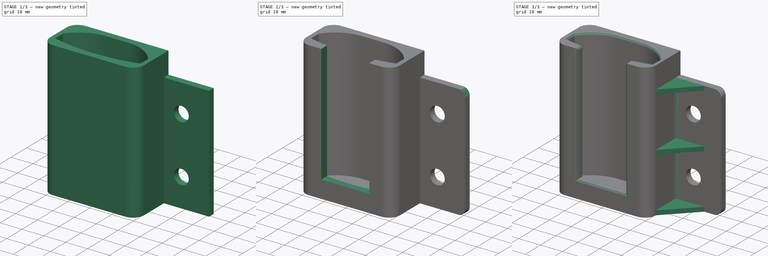
[diagram: build sequence overview — one tinted view per stage of 3, left to right]
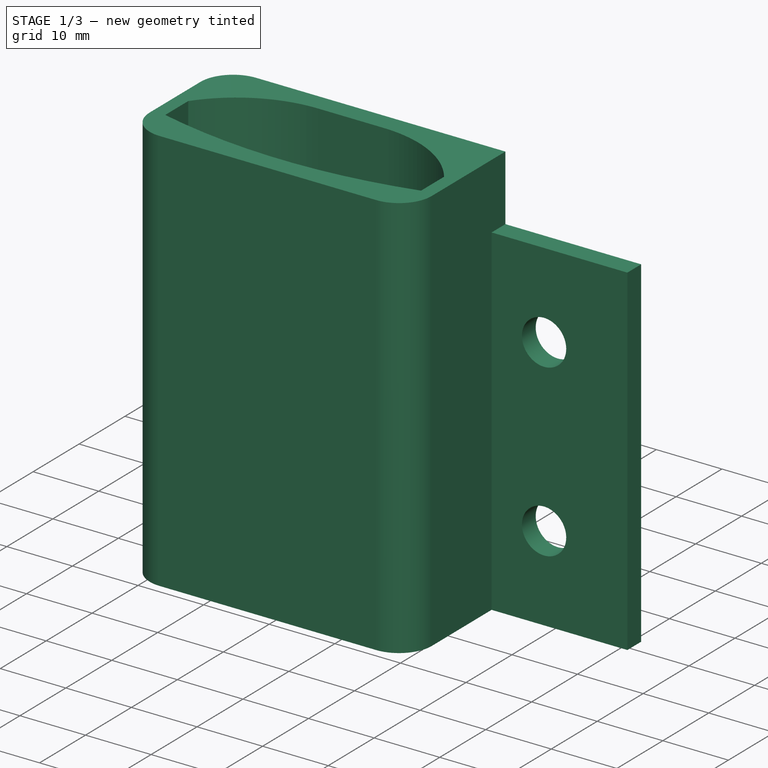
[diagram: stage 1 of 3 — iso view after this stage's code; geometry added in this stage tinted green]
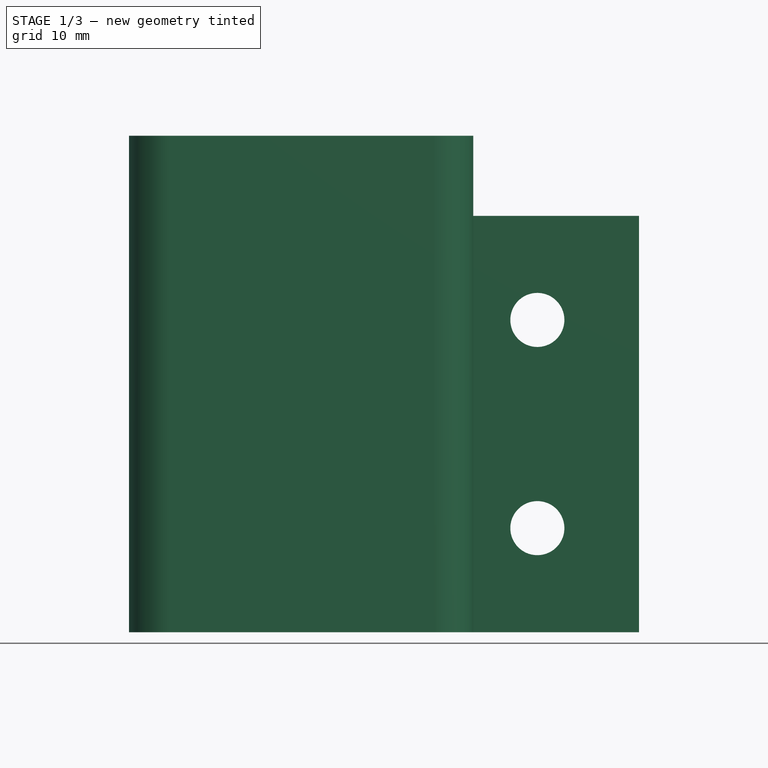
[diagram: stage 1 of 3 — front view after this stage's code; geometry added in this stage tinted green]
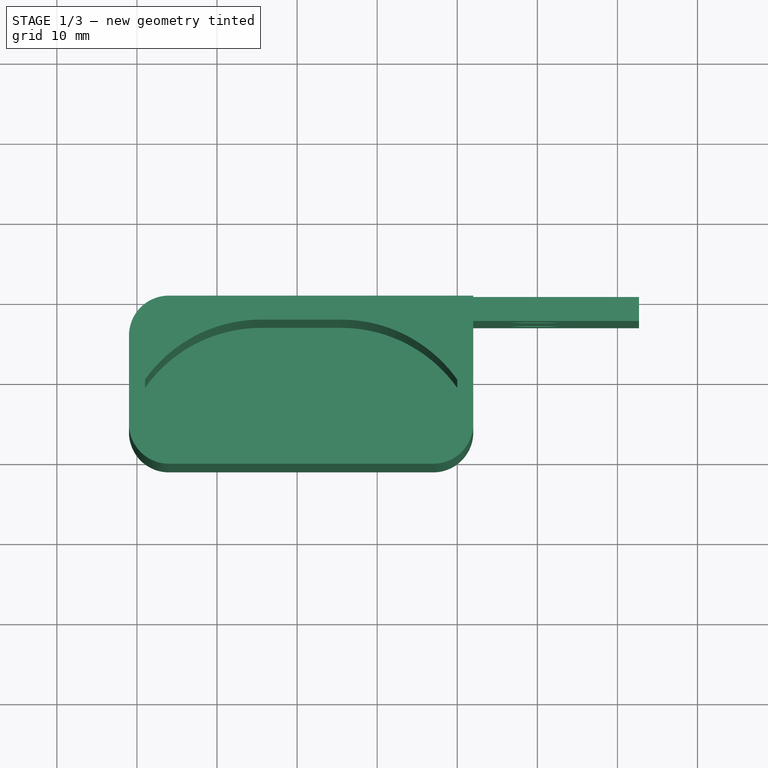
[diagram: stage 1 of 3 — top view after this stage's code; geometry added in this stage tinted green]
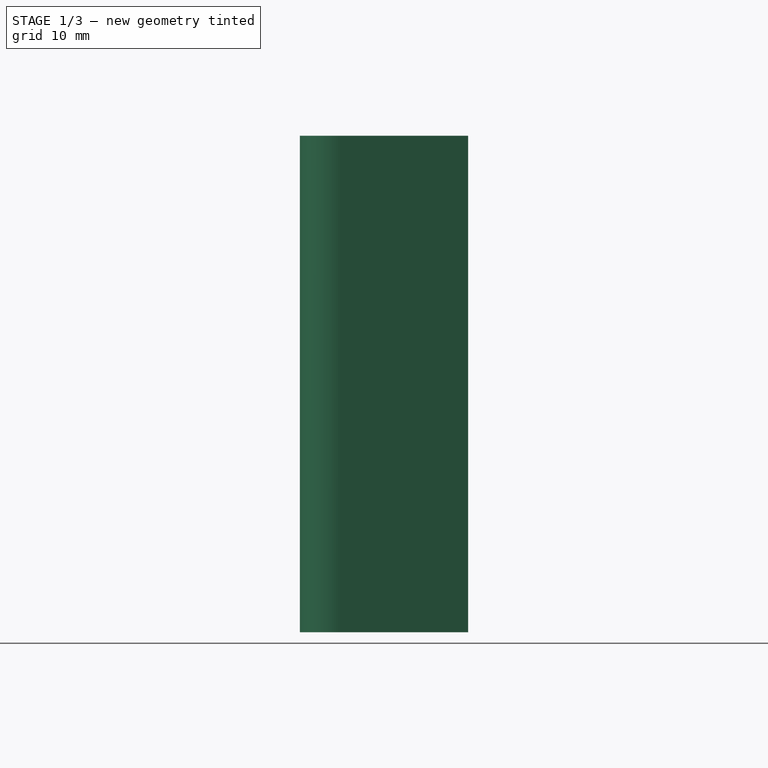
[diagram: stage 1 of 3 — right view after this stage's code; geometry added in this stage tinted green]
FCSTD DOCUMENT  (FreeCAD 0.22R38553 (Git))
Label: led_controller_holder
License: All rights reserved
LicenseURL: http://en.wikipedia.org/wiki/All_rights_reserved
objects: Sketcher::SketchObject×5, PartDesign::Pad×3, PartDesign::Pocket×2, PartDesign::Fillet×2, PartDesign::LinearPattern×1, PartDesign::Body×1
note: 34 computed .brp shape members not serialized (recipe doc carries the construction recipe); baked Part::Feature solids carry a one-line shape summary decoded from their .brp

FEATURE [Sketcher::SketchObject] Sketch
  ArcFitTolerance = 1e-06
  AttachmentSupport = -> [XZ_Plane]
  FullyConstrained = true
  MakeInternals = false
  MapMode = 5
  Placement = pos=(0,0,0) rot=(1,0,0;1.5708rad)
  sketch-geometry (8):
    g0: LineSegment StartX=-12.7 StartY=0 StartZ=0 EndX=12.7 EndY=0 EndZ=0
    g1: LineSegment StartX=12.7 StartY=0 StartZ=0 EndX=12.7 EndY=52 EndZ=0
    g2: LineSegment StartX=-12.7 StartY=52 StartZ=0 EndX=-12.7 EndY=0 EndZ=0
    g3: Circle CenterX=0 CenterY=39 CenterZ=0 NormalX=0 NormalY=0 NormalZ=1 AngleXU=0 Radius=3.375
    g4: Circle CenterX=0 CenterY=13 CenterZ=0 NormalX=0 NormalY=0 NormalZ=1 AngleXU=0 Radius=3.375
    g5: LineSegment [constr] StartX=0 StartY=39 StartZ=0 EndX=-8e-16 EndY=52 EndZ=0
    g6: LineSegment [constr] StartX=0 StartY=13 StartZ=0 EndX=0 EndY=0 EndZ=0
    g7: LineSegment StartX=-12.7 StartY=52 StartZ=0 EndX=12.7 EndY=52 EndZ=0
  constraints (21):
    c: Coincident(g0,g1)
    c: Coincident(g2,g0)
    c: Horizontal(g0)
    c: Vertical(g1)
    c: Vertical(g2)
    c: PointOnObject(g0,g-1)
    c: Distance(g1,g2) = 25.4
    c: DistanceY(g1,g1) = 52
    c: Symmetric(g2,g1,g-2)
    c: PointOnObject(g4,g-2)
    c: DistanceY(g4,g3) = 26
    c: Coincident(g5,g3)
    c: Symmetric(g1,g2,g5)
    c: Coincident(g6,g4)
    c: Coincident(g6,g-1)
    c: Equal(g5,g6)
    c: Equal(g3,g4)
    c: Diameter(g3) = 6.75
    c: Coincident(g7,g2)
    c: Coincident(g7,g1)
    c: PointOnObject(g3,g-2)
FEATURE [PartDesign::Pad] Pad
  Direction = (0,-1,2e-16)
  Length = 3
  Length2 = 10
  Placement = pos=(0,0,0) rot=(1,0,0;1.5708rad)
  Profile = -> Sketch
  ReferenceAxis = -> Sketch [N_Axis]
  Suppressed = false
  Type = 0
FEATURE [Sketcher::SketchObject] Sketch001
  ArcFitTolerance = 1e-06
  AttachmentSupport = -> [XY_Plane]
  ExternalGeometry = -> [Pad]
  FullyConstrained = true
  MakeInternals = false
  MapMode = 5
  sketch-geometry (10):
    g0: LineSegment StartX=-51 StartY=-5 StartZ=0 EndX=-51 EndY=-16 EndZ=0
    g1: LineSegment StartX=-46 StartY=-21 StartZ=0 EndX=-13 EndY=-21 EndZ=0
    g2: LineSegment StartX=-8 StartY=-16 StartZ=0 EndX=-8 EndY=-3.2e-14 EndZ=0
    g3: ArcOfCircle CenterX=-46 CenterY=-16 CenterZ=0 NormalX=0 NormalY=0 NormalZ=1 AngleXU=0 Radius=5 StartAngle=3.14159 EndAngle=4.71239
    g4: GeomPoint [constr] X=-51 Y=-21 Z=0
    g5: ArcOfCircle CenterX=-13 CenterY=-16 CenterZ=0 NormalX=0 NormalY=0 NormalZ=1 AngleXU=0 Radius=5 StartAngle=4.71239 EndAngle=6.28319
    g6: GeomPoint [constr] X=-8 Y=-21 Z=0
    g7: LineSegment StartX=-46 StartY=-3.29e-14 StartZ=0 EndX=-8 EndY=-3.29e-14 EndZ=0
    g8: ArcOfCircle CenterX=-46 CenterY=-5 CenterZ=0 NormalX=0 NormalY=0 NormalZ=1 AngleXU=0 Radius=5 StartAngle=1.5708 EndAngle=3.14159
    g9: GeomPoint [constr] X=-51 Y=0 Z=0
  constraints (24):
    c: Horizontal(g1)
    c: Vertical(g0)
    c: Vertical(g2)
    c: PointOnObject(g4,g0)
    c: PointOnObject(g4,g1)
    c: Tangent(g0,g3) = -1.5708
    c: Tangent(g1,g3) = -1.5708
    c: PointOnObject(g6,g1)
    c: PointOnObject(g6,g2)
    c: Tangent(g1,g5) = -1.5708
    c: Tangent(g2,g5) = -1.5708
    c: DistanceY(g1,g-4) = 18
    c: Coincident(g7,g2)
    c: Horizontal(g7)
    c: PointOnObject(g2,g-3)
    c: Distance(g-1,g2) = 8
    c: DistanceX(g9,g2) = 43
    c: Equal(g3,g5)
    c: Radius(g3) = 5
    c: PointOnObject(g9,g0)
    c: PointOnObject(g9,g7)
    c: Tangent(g0,g8) = -1.5708
    c: Tangent(g7,g8) = 1.5708
    c: Equal(g8,g3)
FEATURE [PartDesign::Pad] Pad001
  BaseFeature = -> Pad
  Direction = (0,0,1)
  Length = 62
  Length2 = 10
  Placement = pos=(0,0,0) rot=(1,0,0;1.5708rad)
  Profile = -> Sketch001
  ReferenceAxis = -> Sketch001 [N_Axis]
  Suppressed = false
  Type = 0
FEATURE [Sketcher::SketchObject] Sketch003
  ArcFitTolerance = 1e-06
  ExternalGeometry = -> [Sketch001]
  FullyConstrained = true
  MakeInternals = false
  MapMode = 5
  Placement = pos=(0,0,62) rot=(0,0,1;3.14159rad)
  sketch-geometry (10):
    g0: LineSegment StartX=49 StartY=15.5 StartZ=0 EndX=49 EndY=10.5 EndZ=0
    g1: LineSegment StartX=10 StartY=10.5 StartZ=0 EndX=10 EndY=15.5 EndZ=0
    g2: ArcOfCircle CenterX=29.5 CenterY=-59.3 CenterZ=0 NormalX=0 NormalY=0 NormalZ=1 AngleXU=0 Radius=77.3 StartAngle=1.31578 EndAngle=1.82582
    g3: LineSegment [constr] StartX=29.5 StartY=21 StartZ=0 EndX=29.5 EndY=18 EndZ=0
    g4: LineSegment [constr] StartX=29.5 StartY=3 StartZ=0 EndX=29.5 EndY=0 EndZ=0
    g5: LineSegment [constr] StartX=10 StartY=15.5 StartZ=0 EndX=8 EndY=15.5 EndZ=0
    g6: LineSegment [constr] StartX=49 StartY=15.5 StartZ=0 EndX=51 EndY=15.5 EndZ=0
    g7: ArcOfCircle CenterX=24.5 CenterY=20.7667 CenterZ=0 NormalX=0 NormalY=0 NormalZ=1 AngleXU=0 Radius=17.7667 StartAngle=3.7577 EndAngle=4.71239
    g8: LineSegment StartX=24.5 StartY=3 StartZ=0 EndX=34.5 EndY=3 EndZ=0
    g9: ArcOfCircle CenterX=34.5 CenterY=20.7667 CenterZ=0 NormalX=0 NormalY=0 NormalZ=1 AngleXU=0 Radius=17.7667 StartAngle=4.71239 EndAngle=5.66708
  constraints (33):
    c: Vertical(g0)
    c: Vertical(g1)
    c: Equal(g1,g0)
    c: DistanceY(g0,g0) = 5
    c: DistanceX(g1,g0) = 39
    c: Coincident(g2,g1)
    c: Coincident(g2,g0)
    c: Horizontal(g1,g0)
    c: PointOnObject(g3,g2)
    c: Vertical(g3)
    c: PointOnObject(g4,g-1)
    c: Vertical(g4)
    c: Distance(g3,g3) = 3
    c: Distance(g4,g4) = 3
    c: DistanceY(g4,g0) = 7.5
    c: DistanceY(g0,g3) = 2.5
    c: Coincident(g5,g1)
    c: Horizontal(g5)
    c: Coincident(g6,g0)
    c: Horizontal(g6)
    c: Equal(g6,g5)
    c: Vertical(g3,g4)
    c: PointOnObject(g5,g-3)
    c: PointOnObject(g6,g-4)
    c: Tangent(g7,g8) = -1.5708
    c: Tangent(g8,g9) = -1.5708
    c: Coincident(g9,g0)
    c: Horizontal(g8)
    c: Equal(g7,g9)
    c: Coincident(g7,g1)
    c: PointOnObject(g4,g8)
    c: DistanceX(g8,g8) = 10
    c: Symmetric(g-5,g-5,g3)
FEATURE [PartDesign::Pocket] Pocket
  BaseFeature = -> Pad001
  Direction = (0,0,-1)
  Length = 59
  Length2 = 5
  Placement = pos=(0,0,0) rot=(1,0,0;1.5708rad)
  Profile = -> Sketch003
  ReferenceAxis = -> Sketch003 [N_Axis]
  Suppressed = false
  Type = 0
  expr: Length = Pad001.Length - 3 mm
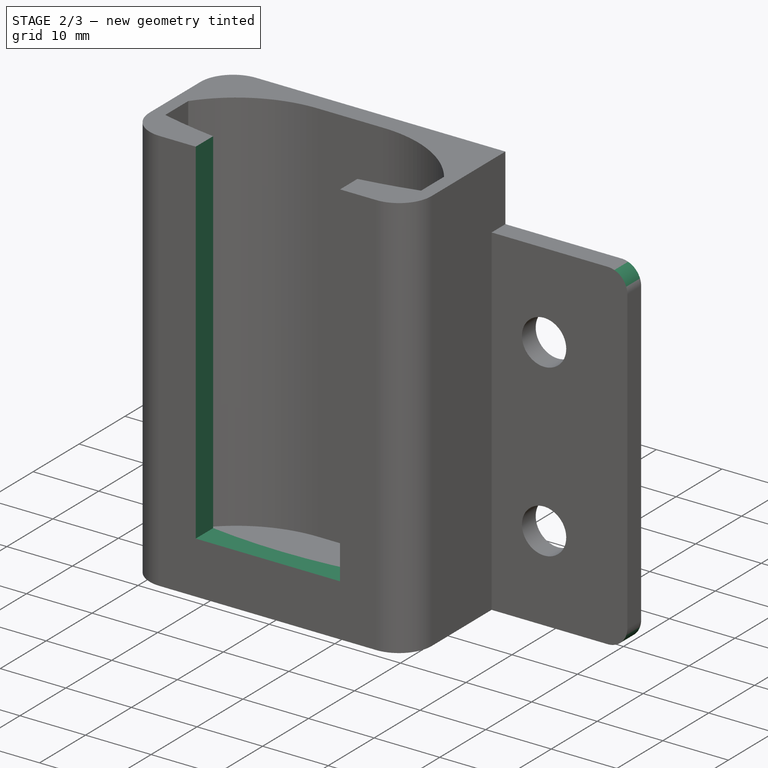
[diagram: stage 2 of 3 — iso view after this stage's code; geometry added in this stage tinted green]
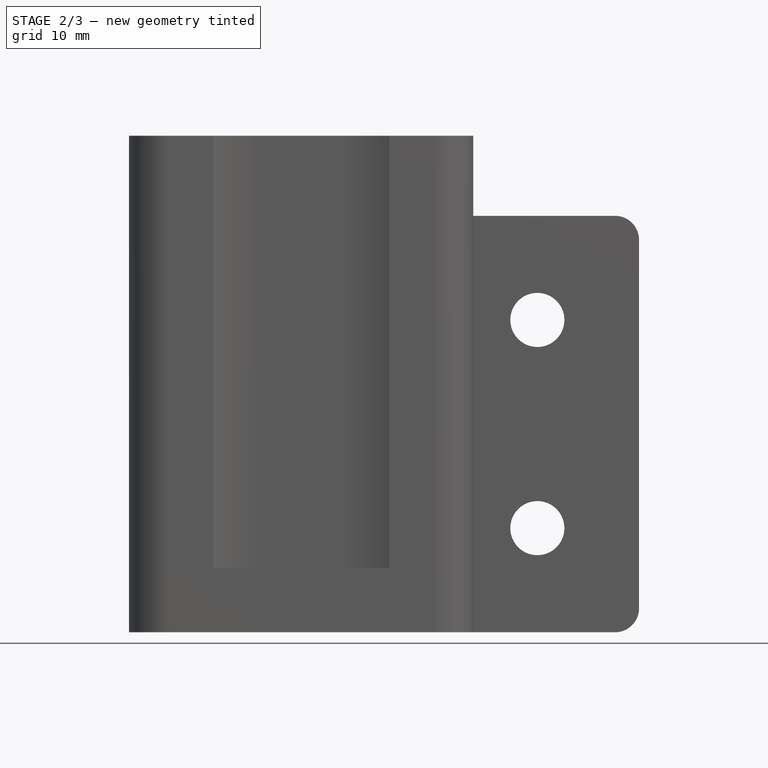
[diagram: stage 2 of 3 — front view after this stage's code; geometry added in this stage tinted green]
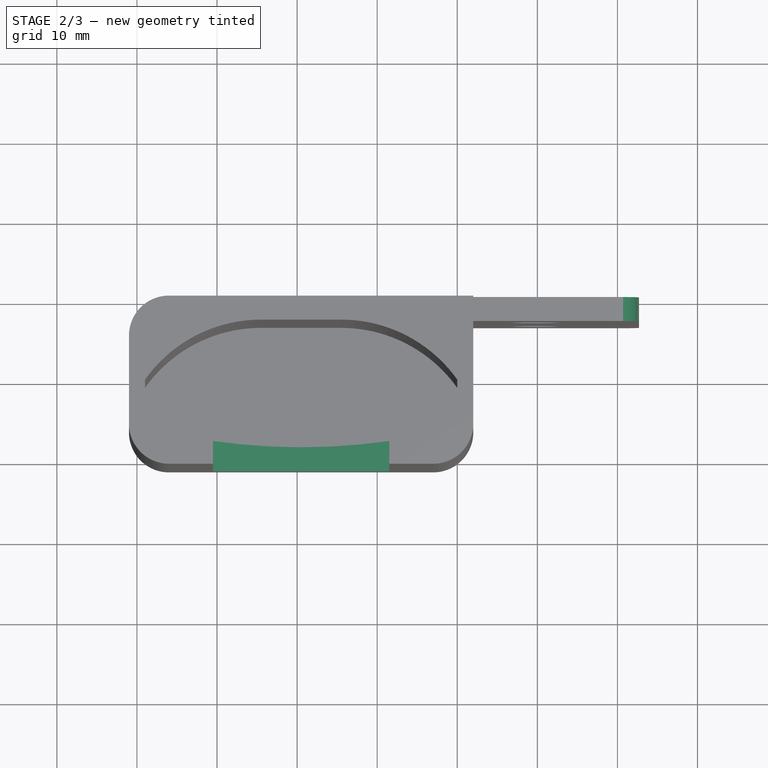
[diagram: stage 2 of 3 — top view after this stage's code; geometry added in this stage tinted green]
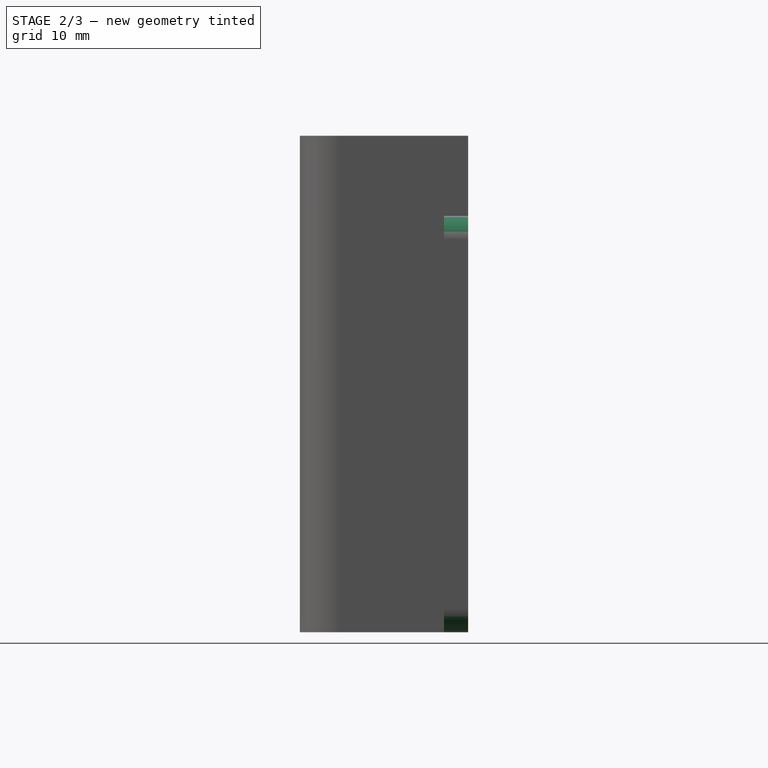
[diagram: stage 2 of 3 — right view after this stage's code; geometry added in this stage tinted green]
FEATURE [Sketcher::SketchObject] Sketch004
  ArcFitTolerance = 1e-06
  AttachmentSupport = -> [Pocket]
  ExternalGeometry = -> [Pocket]
  FullyConstrained = false
  MakeInternals = false
  MapMode = 5
  Placement = pos=(0,-21,0) rot=(1,0,0;1.5708rad)
  sketch-geometry (6):
    g0: LineSegment StartX=-40.5 StartY=62 StartZ=0 EndX=-40.5 EndY=8 EndZ=0
    g1: LineSegment StartX=-40.5 StartY=8 StartZ=0 EndX=-18.5 EndY=8 EndZ=0
    g2: LineSegment StartX=-18.5 StartY=8 StartZ=0 EndX=-18.5 EndY=62 EndZ=0
    g3: LineSegment StartX=-18.5 StartY=62 StartZ=0 EndX=-40.5 EndY=62 EndZ=0
    g4: LineSegment [constr] StartX=-46 StartY=62 StartZ=0 EndX=-40.5 EndY=62 EndZ=0
    g5: LineSegment [constr] StartX=-18.5 StartY=62 StartZ=0 EndX=-13 EndY=62 EndZ=0
  constraints (12):
    c: Coincident(g0,g1)
    c: Coincident(g1,g2)
    c: Coincident(g2,g3)
    c: Coincident(g3,g0)
    c: Vertical(g0)
    c: Vertical(g2)
    c: Horizontal(g1)
    c: Horizontal(g3)
    c: Coincident(g4,g0)
    c: Coincident(g5,g2)
    c: Equal(g4,g5)
    c: DistanceX(g3,g3) = 22
FEATURE [PartDesign::Pocket] Pocket001
  BaseFeature = -> Pocket
  Direction = (0,1,-2e-16)
  Length = 5
  Length2 = 5
  Placement = pos=(0,0,0) rot=(1,0,0;1.5708rad)
  Profile = -> Sketch004
  ReferenceAxis = -> Sketch004 [N_Axis]
  Suppressed = false
  Type = 0
FEATURE [PartDesign::Fillet] Fillet
  Base = -> Pocket001 [Edge25,Edge9]
  BaseFeature = -> Pocket001
  Placement = pos=(0,0,0) rot=(1,0,0;1.5708rad)
  Radius = 3
  SupportTransform = false
  Suppressed = false
  UseAllEdges = false
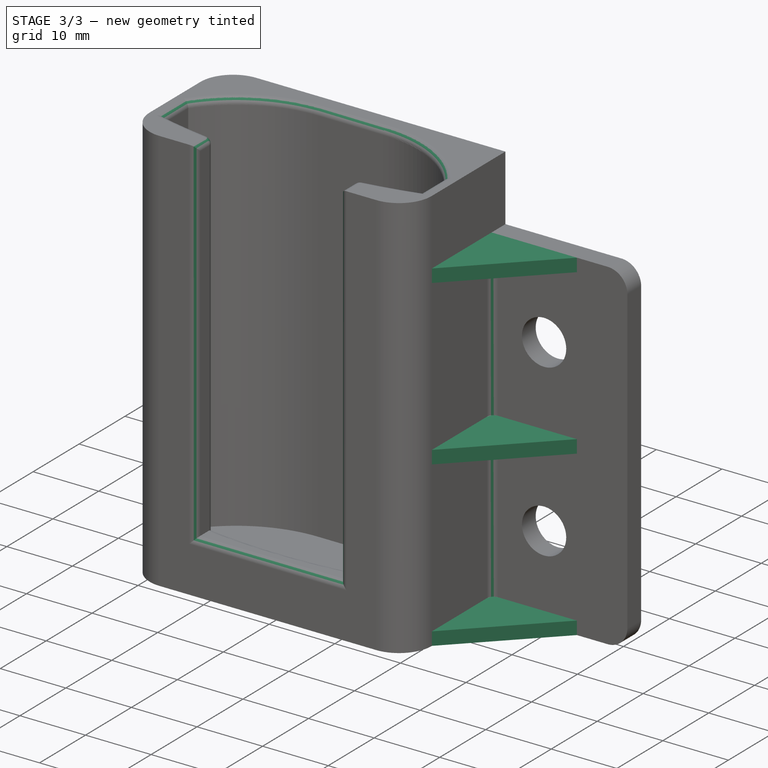
[diagram: stage 3 of 3 — iso view after this stage's code; geometry added in this stage tinted green]
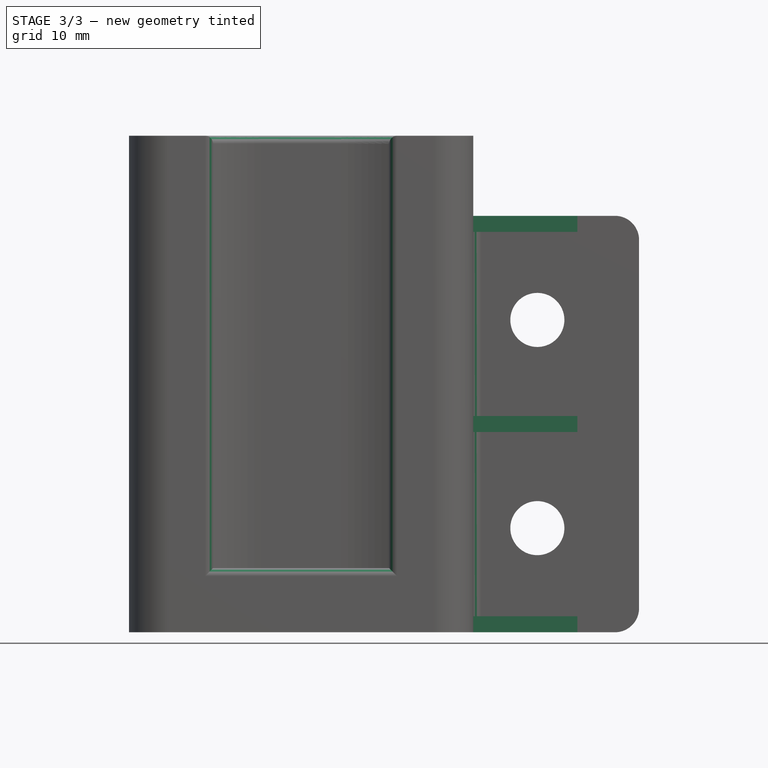
[diagram: stage 3 of 3 — front view after this stage's code; geometry added in this stage tinted green]
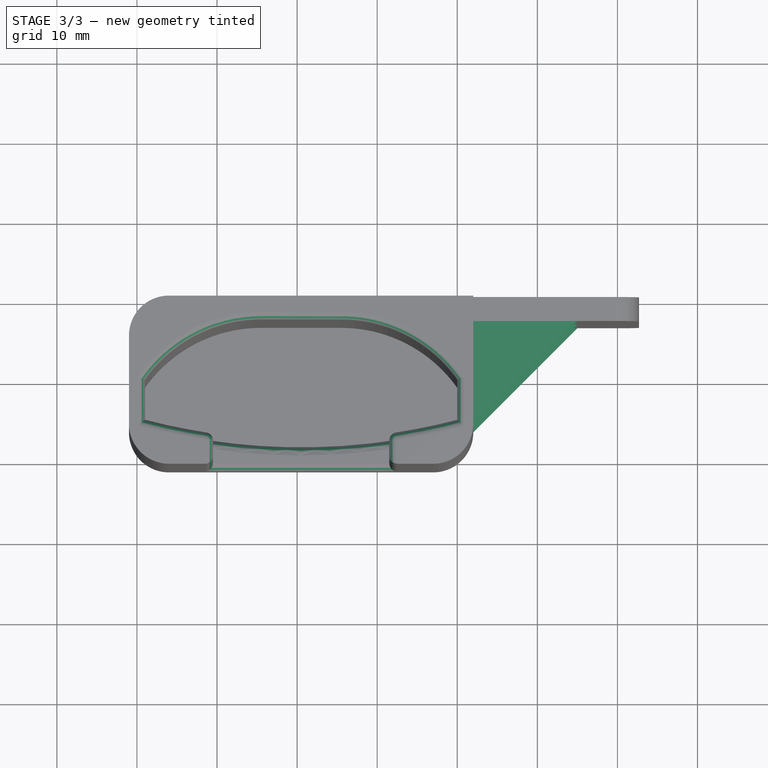
[diagram: stage 3 of 3 — top view after this stage's code; geometry added in this stage tinted green]
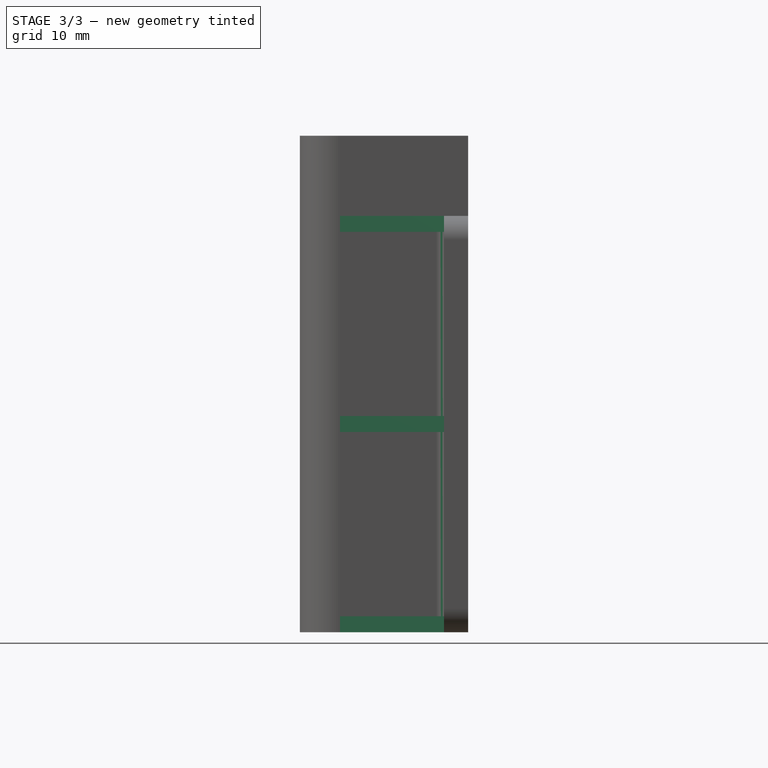
[diagram: stage 3 of 3 — right view after this stage's code; geometry added in this stage tinted green]
FEATURE [Sketcher::SketchObject] Sketch005
  ArcFitTolerance = 1e-06
  AttachmentSupport = -> [XY_Plane]
  ExternalGeometry = -> [Fillet]
  FullyConstrained = true
  MakeInternals = false
  MapMode = 5
  sketch-geometry (3):
    g0: LineSegment StartX=-8 StartY=-16 StartZ=0 EndX=-8 EndY=-3 EndZ=0
    g1: LineSegment StartX=-8 StartY=-3 StartZ=0 EndX=5 EndY=-3 EndZ=0
    g2: LineSegment StartX=-8 StartY=-16 StartZ=0 EndX=5 EndY=-3 EndZ=0
  constraints (7):
    c: Coincident(g0,g-4)
    c: Coincident(g1,g0)
    c: PointOnObject(g1,g-4)
    c: Equal(g0,g1)
    c: Coincident(g0,g-3)
    c: Coincident(g2,g0)
    c: Coincident(g2,g1)
FEATURE [PartDesign::Pad] Pad002
  BaseFeature = -> Fillet
  Direction = (0,0,1)
  Length = 2
  Length2 = 10
  Placement = pos=(0,0,0) rot=(1,0,0;1.5708rad)
  Profile = -> Sketch005
  ReferenceAxis = -> Sketch005 [N_Axis]
  Suppressed = false
  Type = 0
FEATURE [PartDesign::LinearPattern] LinearPattern
  BaseFeature = -> Pad002
  Direction = -> Z_Axis
  Length = 50
  Mode = 0
  Occurrences = 3
  Offset = 25
  Originals = -> [Pad002]
  Placement = pos=(0,0,0) rot=(1,0,0;1.5708rad)
  Suppressed = false
  TransformMode = 0
  expr: Length = 50 mm
FEATURE [PartDesign::Fillet] Fillet001
  Base = -> LinearPattern [Edge25,Edge29,Edge71,Edge72,Edge73,Edge89,Edge81,Edge94,Edge92,Edge90,Edge82,Edge83,Edge84,Edge85,Edge86,Edge87,Edge88]
  BaseFeature = -> LinearPattern
  Placement = pos=(0,0,0) rot=(1,0,0;1.5708rad)
  Radius = 1
  SupportTransform = false
  Suppressed = false
  UseAllEdges = false
FEATURE [PartDesign::Body] Body
  AllowCompound = false
  Group = -> [Sketch,Pad,Sketch001,Pad001,Sketch003,Pocket,Sketch004,Pocket001,Fillet,Sketch005,Pad002,LinearPattern,Fillet001]
  Origin = -> Origin
  Tip = -> Fillet001
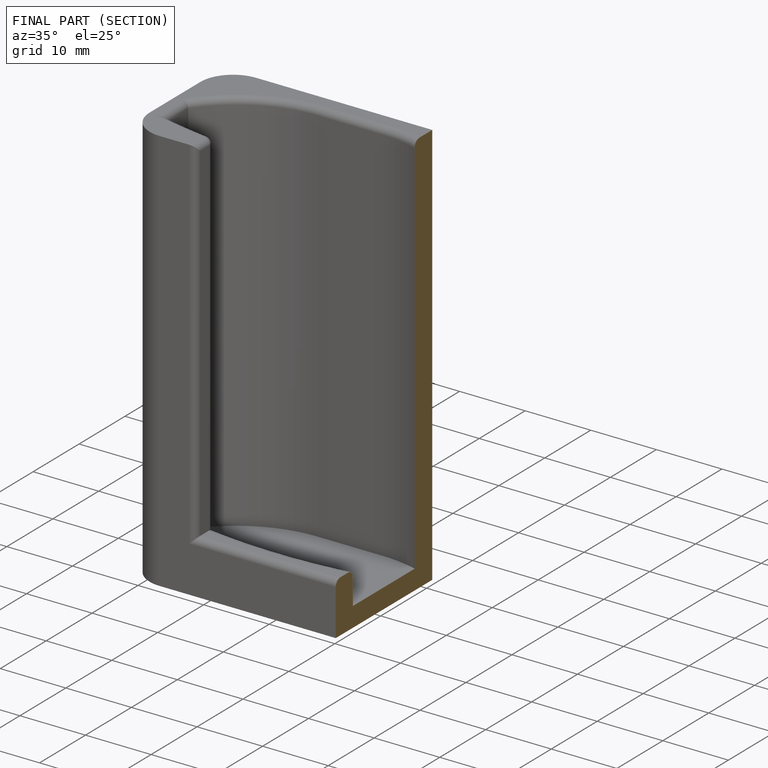
[diagram: finished part — half-section view (interior)]
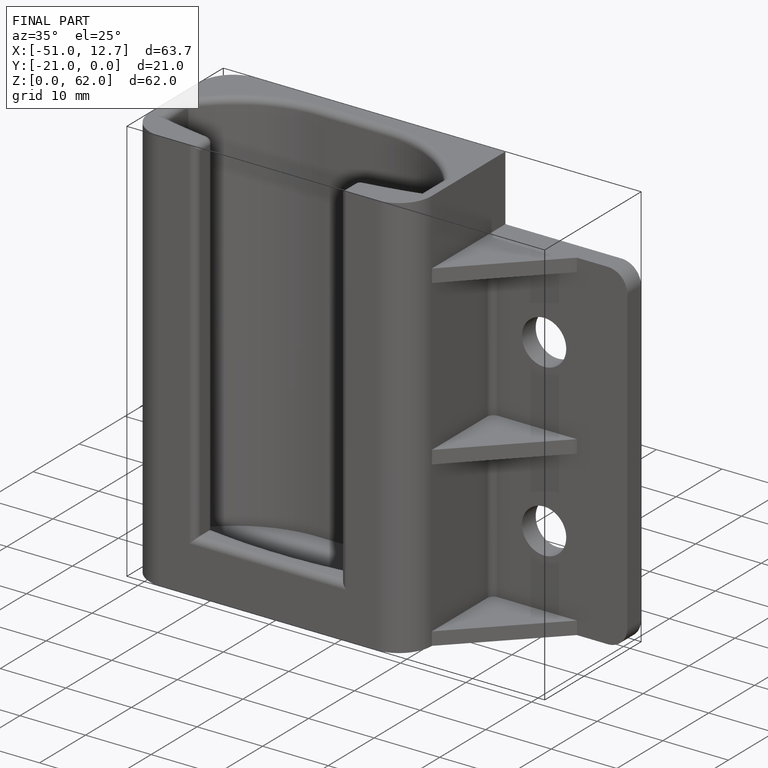
[diagram: finished part — iso view with bounding-box wireframe]
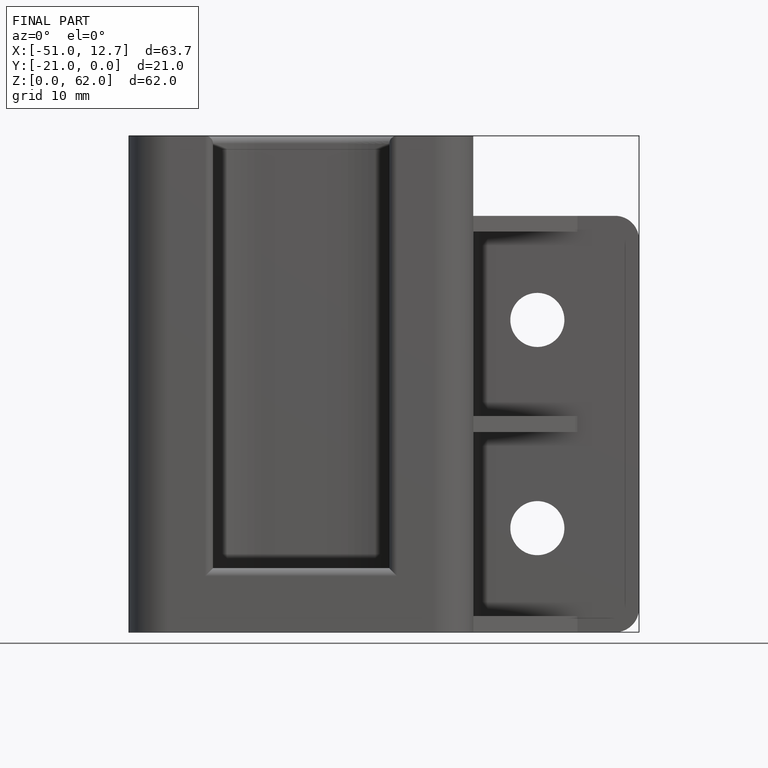
[diagram: finished part — front view with bounding-box wireframe]
